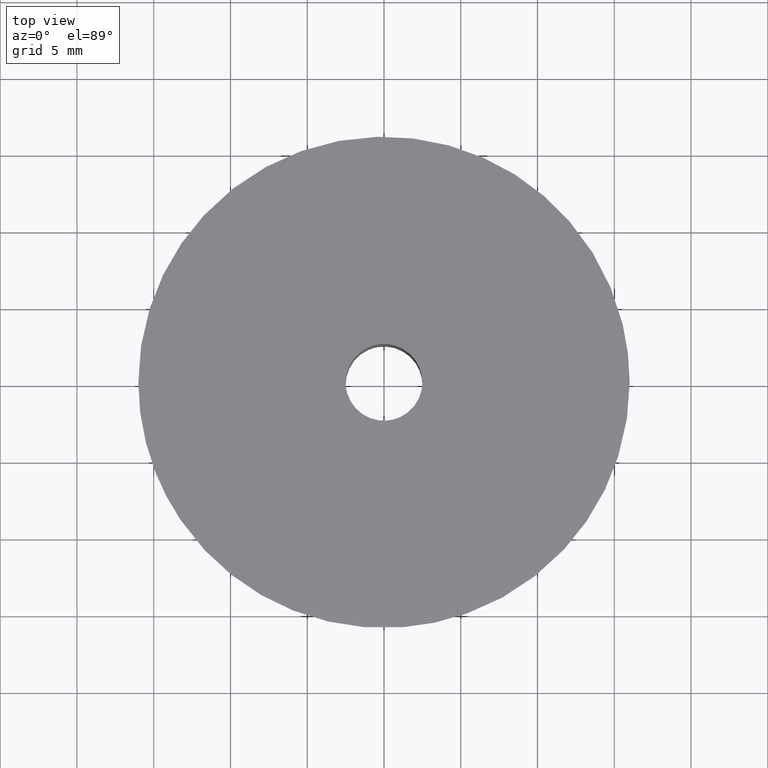
[diagram: clean part render]
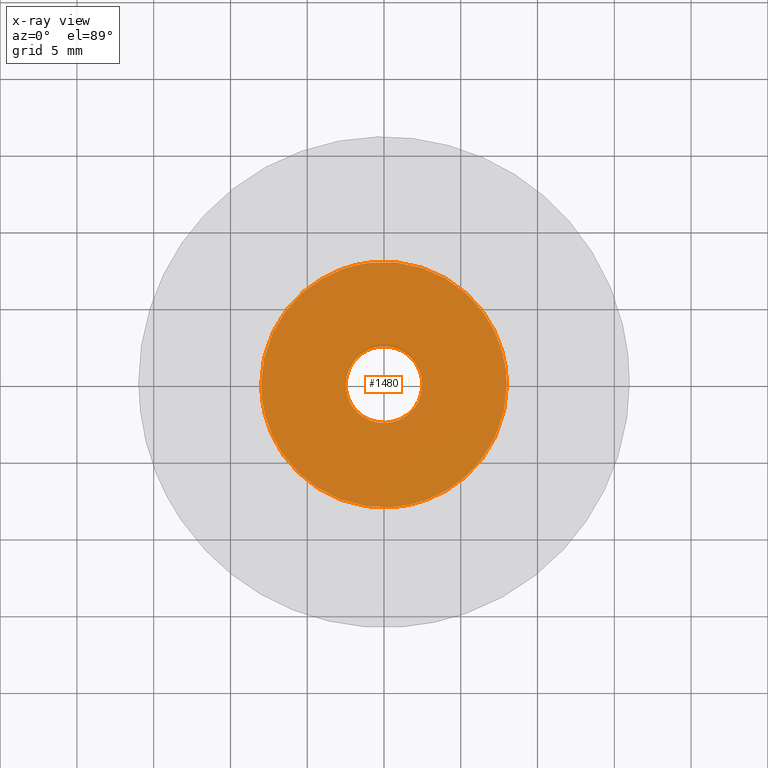
[diagram: x-ray — body ghosted, one internal face saturated and labeled with its STEP entity id]
A machine part, top view, then the same camera in x-ray: the body is ghosted and one INTERNAL B-rep face — a face not visible from any outside direction — is saturated and labeled: STEP entity #1480.
In plain terms, the highlighted face is a freeform B-spline surface patch.
Its self-contained STEP definition (entity closure, byte-faithful):
#750=CARTESIAN_POINT('',(-0.295085586690287,2.482523815903414,5.800000000000000));
#751=VERTEX_POINT('',#750);
#757=CARTESIAN_POINT('',(2.500000000000000,0.0,5.800000000000000));
#758=VERTEX_POINT('',#757);
#759=CARTESIAN_POINT('',(-0.295085586690287,2.482523815903414,5.800000000000000));
#760=CARTESIAN_POINT('',(-0.148060299178678,2.500000000000000,5.800000000000000));
#761=CARTESIAN_POINT('',(0.0,2.500000000000000,5.800000000000000));
#762=CARTESIAN_POINT('',(2.500000000000000,2.500000000000000,5.800000000000001));
#763=CARTESIAN_POINT('',(2.500000000000000,0.0,5.800000000000000));
#771=(BOUNDED_CURVE()B_SPLINE_CURVE(2,(#759,#760,#761,#762,#763),.UNSPECIFIED.,.F.,.U.)B_SPLINE_CURVE_WITH_KNOTS((3,2,3),(0.229562473509056,0.250000000000000,0.500000000000000),.UNSPECIFIED.)CURVE()GEOMETRIC_REPRESENTATION_ITEM()RATIONAL_B_SPLINE_CURVE((0.956026754174972,0.976055948325928,1.0,0.707106781186548,1.0))REPRESENTATION_ITEM(''));
#772=EDGE_CURVE('',#751,#758,#771,.T.);
#774=CARTESIAN_POINT('',(0.152621348895174,-2.495336996051118,5.800000000000000));
#775=VERTEX_POINT('',#774);
#776=CARTESIAN_POINT('',(2.500000000000000,0.0,5.800000000000000));
#777=CARTESIAN_POINT('',(2.500000000000000,-2.351765167154643,5.800000000000002));
#778=CARTESIAN_POINT('',(0.152621348895174,-2.495336996051119,5.800000000000000));
#786=(BOUNDED_CURVE()B_SPLINE_CURVE(2,(#776,#777,#778),.UNSPECIFIED.,.F.,.U.)B_SPLINE_CURVE_WITH_KNOTS((3,3),(0.500000000000000,0.739332962233942),.UNSPECIFIED.)CURVE()GEOMETRIC_REPRESENTATION_ITEM()RATIONAL_B_SPLINE_CURVE((1.0,0.719603993292569,0.976072041656001))REPRESENTATION_ITEM(''));
#787=EDGE_CURVE('',#758,#775,#786,.T.);
#861=CARTESIAN_POINT('',(-2.500000000000000,0.0,5.800000000000000));
#862=VERTEX_POINT('',#861);
#863=CARTESIAN_POINT('',(0.152621348895174,-2.495336996051118,5.800000000000000));
#864=CARTESIAN_POINT('',(0.076381908304666,-2.500000000000000,5.799999999999999));
#865=CARTESIAN_POINT('',(0.0,-2.500000000000000,5.800000000000000));
#866=CARTESIAN_POINT('',(-2.500000000000000,-2.500000000000000,5.800000000000001));
#867=CARTESIAN_POINT('',(-2.500000000000000,0.0,5.800000000000000));
#875=(BOUNDED_CURVE()B_SPLINE_CURVE(2,(#863,#864,#865,#866,#867),.UNSPECIFIED.,.F.,.U.)B_SPLINE_CURVE_WITH_KNOTS((3,2,3),(0.739332962233943,0.750000000000000,1.0),.UNSPECIFIED.)CURVE()GEOMETRIC_REPRESENTATION_ITEM()RATIONAL_B_SPLINE_CURVE((0.976072041656002,0.987502787893979,1.0,0.707106781186548,1.0))REPRESENTATION_ITEM(''));
#876=EDGE_CURVE('',#775,#862,#875,.T.);
#878=CARTESIAN_POINT('',(-2.500000000000000,0.0,5.800000000000000));
#879=CARTESIAN_POINT('',(-2.500000000000000,2.220436314791246,5.800000000000001));
#880=CARTESIAN_POINT('',(-0.295085586690287,2.482523815903414,5.800000000000000));
#888=(BOUNDED_CURVE()B_SPLINE_CURVE(2,(#878,#879,#880),.UNSPECIFIED.,.F.,.U.)B_SPLINE_CURVE_WITH_KNOTS((3,3),(0.0,0.229562473509056),.UNSPECIFIED.)CURVE()GEOMETRIC_REPRESENTATION_ITEM()RATIONAL_B_SPLINE_CURVE((1.0,0.731050832860619,0.956026754174972))REPRESENTATION_ITEM(''));
#889=EDGE_CURVE('',#862,#751,#888,.T.);
#917=CARTESIAN_POINT('',(-0.944270552349110,7.944076606123274,5.799999999999869));
#918=VERTEX_POINT('',#917);
#919=CARTESIAN_POINT('',(8.0,0.0,5.800000000000000));
#920=VERTEX_POINT('',#919);
#921=CARTESIAN_POINT('',(-0.944270552349110,7.944076606123274,5.799999999999869));
#922=CARTESIAN_POINT('',(-0.473791277187671,8.0,5.800000000000000));
#923=CARTESIAN_POINT('',(0.0,8.0,5.800000000000000));
#924=CARTESIAN_POINT('',(8.0,8.0,5.800000000000001));
#925=CARTESIAN_POINT('',(8.0,0.0,5.800000000000000));
#933=(BOUNDED_CURVE()B_SPLINE_CURVE(2,(#921,#922,#923,#924,#925),.UNSPECIFIED.,.F.,.U.)B_SPLINE_CURVE_WITH_KNOTS((3,2,3),(0.229562544250081,0.250000000000000,0.500000000000000),.UNSPECIFIED.)CURVE()GEOMETRIC_REPRESENTATION_ITEM()RATIONAL_B_SPLINE_CURVE((0.956026892830324,0.976056031204195,1.0,0.707106781186548,1.0))REPRESENTATION_ITEM(''));
#934=EDGE_CURVE('',#918,#920,#933,.T.);
#975=CARTESIAN_POINT('',(0.488383015741561,-7.985078711566152,5.800000000000258));
#976=VERTEX_POINT('',#975);
#982=CARTESIAN_POINT('',(8.0,0.0,5.800000000000000));
#983=CARTESIAN_POINT('',(8.0,-7.525653540147395,5.800000000000000));
#984=CARTESIAN_POINT('',(0.488383015741561,-7.985078711566152,5.800000000000258));
#992=(BOUNDED_CURVE()B_SPLINE_CURVE(2,(#982,#983,#984),.UNSPECIFIED.,.F.,.U.)B_SPLINE_CURVE_WITH_KNOTS((3,3),(0.500000000000000,0.739333076779450),.UNSPECIFIED.)CURVE()GEOMETRIC_REPRESENTATION_ITEM()RATIONAL_B_SPLINE_CURVE((1.0,0.719603859094159,0.976072287148952))REPRESENTATION_ITEM(''));
#993=EDGE_CURVE('',#920,#976,#992,.T.);
#1016=CARTESIAN_POINT('',(-8.0,0.0,5.800000000000000));
#1017=VERTEX_POINT('',#1016);
#1018=CARTESIAN_POINT('',(-8.0,0.0,5.800000000000000));
#1019=CARTESIAN_POINT('',(-8.0,7.105399202431307,5.800000000000001));
#1020=CARTESIAN_POINT('',(-0.944270552349110,7.944076606123274,5.799999999999869));
#1028=(BOUNDED_CURVE()B_SPLINE_CURVE(2,(#1018,#1019,#1020),.UNSPECIFIED.,.F.,.U.)B_SPLINE_CURVE_WITH_KNOTS((3,3),(0.0,0.229562544250081),.UNSPECIFIED.)CURVE()GEOMETRIC_REPRESENTATION_ITEM()RATIONAL_B_SPLINE_CURVE((1.0,0.731050749982353,0.956026892830324))REPRESENTATION_ITEM(''));
#1029=EDGE_CURVE('',#1017,#918,#1028,.T.);
#1031=CARTESIAN_POINT('',(0.488383015741561,-7.985078711566152,5.800000000000258));
#1032=CARTESIAN_POINT('',(0.244419448689104,-8.0,5.800000000000000));
#1033=CARTESIAN_POINT('',(0.0,-8.0,5.800000000000000));
#1034=CARTESIAN_POINT('',(-8.0,-8.0,5.800000000000001));
#1035=CARTESIAN_POINT('',(-8.0,0.0,5.800000000000000));
#1043=(BOUNDED_CURVE()B_SPLINE_CURVE(2,(#1031,#1032,#1033,#1034,#1035),.UNSPECIFIED.,.F.,.U.)B_SPLINE_CURVE_WITH_KNOTS((3,2,3),(0.739333076779450,0.750000000000000,1.0),.UNSPECIFIED.)CURVE()GEOMETRIC_REPRESENTATION_ITEM()RATIONAL_B_SPLINE_CURVE((0.976072287148952,0.987502922092389,1.0,0.707106781186548,1.0))REPRESENTATION_ITEM(''));
#1044=EDGE_CURVE('',#976,#1017,#1043,.T.);
#1463=CARTESIAN_POINT('',(-8.799199968988896,-8.799005706689352,5.800000000000000));
#1464=CARTESIAN_POINT('',(8.799200398142338,-8.799005706689352,5.800000000000000));
#1465=CARTESIAN_POINT('',(-8.799199968988896,8.799054487130638,5.800000000000000));
#1466=CARTESIAN_POINT('',(8.799200398142338,8.799054487130638,5.800000000000000));
#1467=B_SPLINE_SURFACE_WITH_KNOTS('',1,1,((#1463,#1465),(#1464,#1466)),.UNSPECIFIED.,.F.,.F.,.U.,(2,2),(2,2),(0.0,17.598400367131230),(0.0,17.598060193819990),.UNSPECIFIED.);
#1468=ORIENTED_EDGE('',*,*,#1029,.T.);
#1469=ORIENTED_EDGE('',*,*,#934,.T.);
#1470=ORIENTED_EDGE('',*,*,#993,.T.);
#1471=ORIENTED_EDGE('',*,*,#1044,.T.);
#1472=EDGE_LOOP('',(#1468,#1469,#1470,#1471));
#1473=FACE_OUTER_BOUND('',#1472,.T.);
#1474=ORIENTED_EDGE('',*,*,#787,.F.);
#1475=ORIENTED_EDGE('',*,*,#772,.F.);
#1476=ORIENTED_EDGE('',*,*,#889,.F.);
#1477=ORIENTED_EDGE('',*,*,#876,.F.);
#1478=EDGE_LOOP('',(#1474,#1475,#1476,#1477));
#1479=FACE_BOUND('',#1478,.T.);
#1480=ADVANCED_FACE('',(#1473,#1479),#1467,.F.);